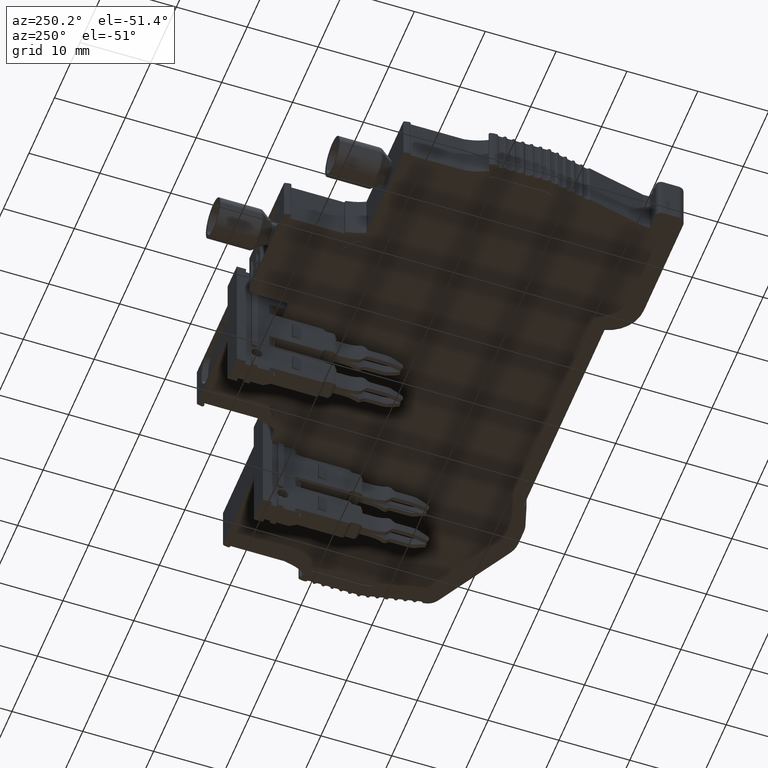
[diagram: clean part render]
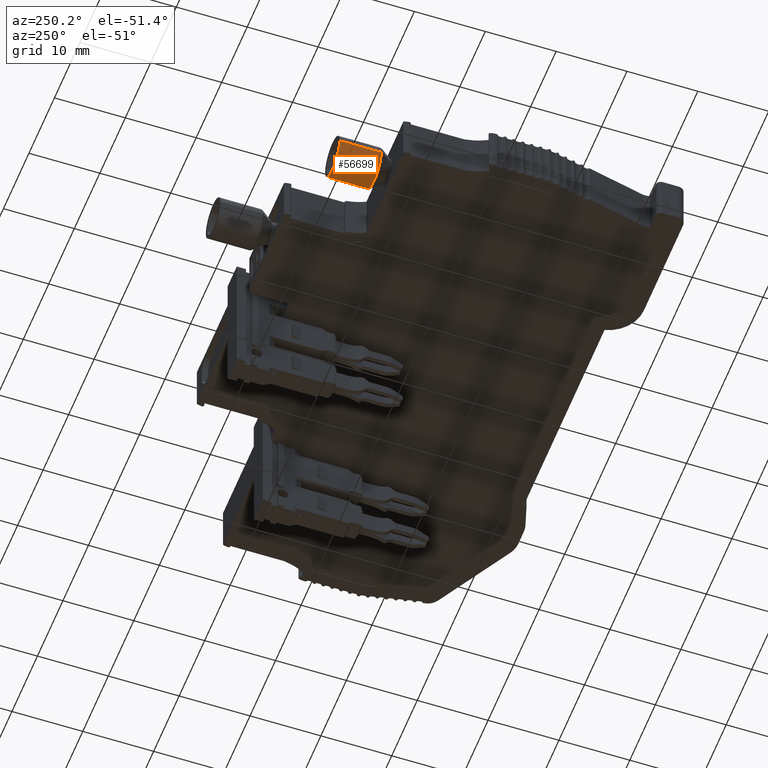
[diagram: same view with one face highlighted and labeled with its STEP entity id]
A machine part, auxiliary view. The second image highlights one B-rep face of the part: STEP entity #56699.
In plain terms, the highlighted cylindrical surface (edge-blend (fillet) strip) has radius 2.85 mm, axis along (0, -1, 0).
Its self-contained STEP definition (entity closure, byte-faithful):
#11217 = EDGE_LOOP ( 'NONE', ( #58059, #57918, #58092, #58148 ) ) ;
#15109 = EDGE_CURVE ( 'NONE', #16437, #16427, #17881, .T. ) ;
#15114 = EDGE_CURVE ( 'NONE', #16437, #16429, #55023, .T. ) ;
#15115 = EDGE_CURVE ( 'NONE', #16429, #16419, #17891, .T. ) ;
#15123 = EDGE_CURVE ( 'NONE', #16427, #16419, #55044, .T. ) ;
#16419 = VERTEX_POINT ( 'NONE', #19342 ) ;
#16427 = VERTEX_POINT ( 'NONE', #19361 ) ;
#16429 = VERTEX_POINT ( 'NONE', #19392 ) ;
#16437 = VERTEX_POINT ( 'NONE', #19350 ) ;
#17809 = CARTESIAN_POINT ( 'NONE',  ( 1897.481156189364800, 439.2474757026759000, 0.4000000000000483200 ) ) ;
#17868 = DIRECTION ( 'NONE',  ( 2.494883201405149900E-014, -1.000000000000000000, 0.0000000000000000000 ) ) ;
#17881 = LINE ( 'NONE', #17809, #55017 ) ;
#17891 = LINE ( 'NONE', #17972, #55027 ) ;
#17896 = DIRECTION ( 'NONE',  ( 2.494883201405149900E-014, -1.000000000000000000, 0.0000000000000000000 ) ) ;
#17900 = CARTESIAN_POINT ( 'NONE',  ( 1900.331156189364900, 451.1903101055430100, 0.4000000000000479800 ) ) ;
#17901 = DIRECTION ( 'NONE',  ( 1.000000000000000000, 1.947759692324671100E-014, 0.0000000000000000000 ) ) ;
#17922 = CARTESIAN_POINT ( 'NONE',  ( 1900.331156189364900, 457.0474757026749400, 0.4000000000000479800 ) ) ;
#17925 = DIRECTION ( 'NONE',  ( 2.494883201405149900E-014, -1.000000000000000000, 0.0000000000000000000 ) ) ;
#17950 = DIRECTION ( 'NONE',  ( 2.494883201405149900E-014, -1.000000000000000000, 0.0000000000000000000 ) ) ;
#17972 = CARTESIAN_POINT ( 'NONE',  ( 1903.181156189365300, 439.2474757026760100, 0.4000000000000479800 ) ) ;
#17977 = DIRECTION ( 'NONE',  ( 1.000000000000000000, 1.947759692324671100E-014, 0.0000000000000000000 ) ) ;
#19342 = CARTESIAN_POINT ( 'NONE',  ( 1903.181156189365300, 451.1903101055430600, 0.4000000000000479800 ) ) ;
#19350 = CARTESIAN_POINT ( 'NONE',  ( 1897.481156189364800, 457.0474757026748900, 0.4000000000000483200 ) ) ;
#19361 = CARTESIAN_POINT ( 'NONE',  ( 1897.481156189364800, 451.1903101055429500, 0.4000000000000483200 ) ) ;
#19392 = CARTESIAN_POINT ( 'NONE',  ( 1903.181156189365300, 457.0474757026750000, 0.4000000000000479800 ) ) ;
#20660 = DIRECTION ( 'NONE',  ( 2.494883201405149900E-014, -1.000000000000000000, 0.0000000000000000000 ) ) ;
#20674 = CARTESIAN_POINT ( 'NONE',  ( 1900.331156189364900, 439.2474757026759600, 0.4000000000000479800 ) ) ;
#20692 = FACE_OUTER_BOUND ( 'NONE', #11217, .T. ) ;
#20700 = CYLINDRICAL_SURFACE ( 'NONE', #55245, 2.850000000000241200 ) ;
#20704 = DIRECTION ( 'NONE',  ( 1.000000000000000000, 1.947759692324671100E-014, 0.0000000000000000000 ) ) ;
#55000 = AXIS2_PLACEMENT_3D ( 'NONE', #17922, #17925, #17977 ) ;
#55017 = VECTOR ( 'NONE', #17868, 1000.000000000000000 ) ;
#55023 = CIRCLE ( 'NONE', #55000, 2.850000000000241200 ) ;
#55027 = VECTOR ( 'NONE', #17950, 1000.000000000000000 ) ;
#55033 = AXIS2_PLACEMENT_3D ( 'NONE', #17900, #17896, #17901 ) ;
#55044 = CIRCLE ( 'NONE', #55033, 2.850000000000241200 ) ;
#55245 = AXIS2_PLACEMENT_3D ( 'NONE', #20674, #20660, #20704 ) ;
#56699 = ADVANCED_FACE ( 'NONE', ( #20692 ), #20700, .T. ) ;
#57918 = ORIENTED_EDGE ( 'NONE', *, *, #15114, .T. ) ;
#58059 = ORIENTED_EDGE ( 'NONE', *, *, #15109, .F. ) ;
#58092 = ORIENTED_EDGE ( 'NONE', *, *, #15115, .T. ) ;
#58148 = ORIENTED_EDGE ( 'NONE', *, *, #15123, .F. ) ;